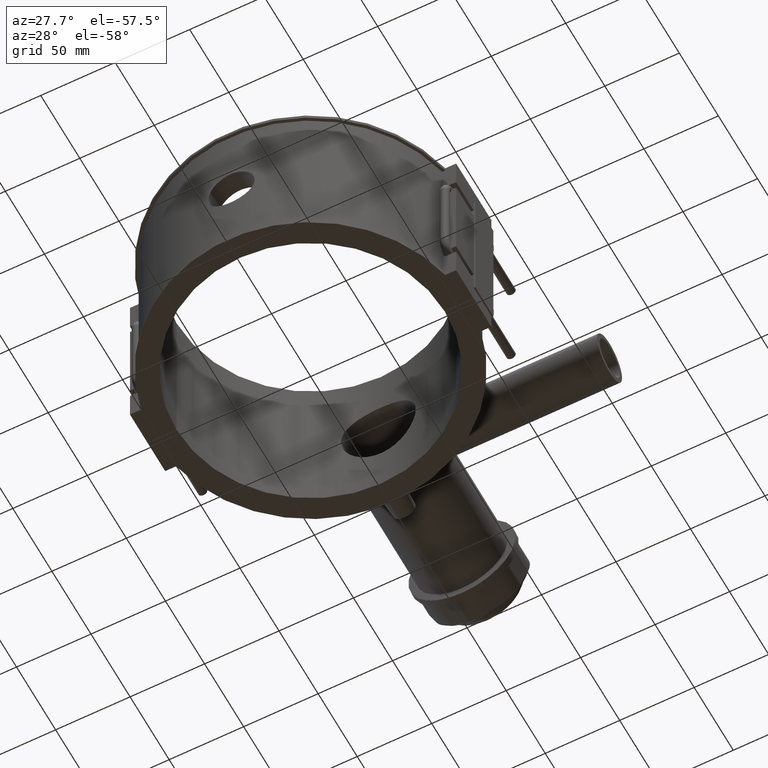
[diagram: clean part render]
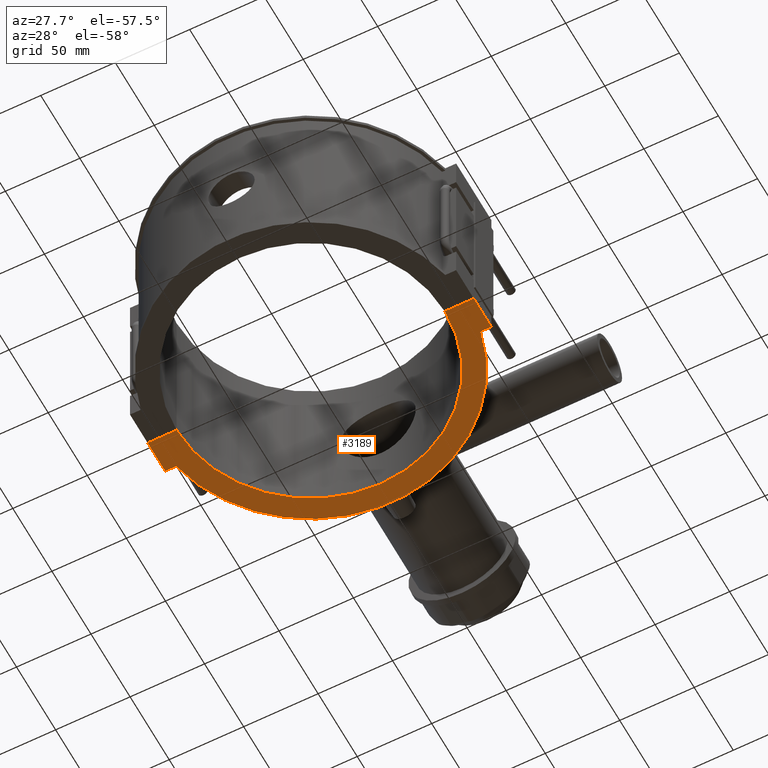
[diagram: same view with one face highlighted and labeled with its STEP entity id]
A machine part, auxiliary view. The second image highlights one B-rep face of the part: STEP entity #3189.
In plain terms, the highlighted planar face has unit normal (0, 0, 1).
Its self-contained STEP definition (entity closure, byte-faithful):
#107=LINE('',#5187,#386);
#170=LINE('',#5569,#449);
#266=LINE('',#6162,#545);
#315=LINE('',#6473,#594);
#317=LINE('',#6476,#596);
#318=LINE('',#6478,#597);
#386=VECTOR('',#3719,7.29534695523888);
#449=VECTOR('',#3846,22.45);
#545=VECTOR('',#4132,19.50001388889);
#594=VECTOR('',#4293,19.5000138888899);
#596=VECTOR('',#4297,7.29534695523888);
#597=VECTOR('',#4300,22.45);
#706=PLANE('',#3470);
#740=CIRCLE('',#3272,104.652);
#811=CIRCLE('',#3469,90.);
#1042=FACE_OUTER_BOUND('',#1274,.T.);
#1274=EDGE_LOOP('',(#2947,#2948,#2949,#2950,#2951,#2952,#2953,#2954));
#1400=VERTEX_POINT('',#5151);
#1401=VERTEX_POINT('',#5152);
#1414=VERTEX_POINT('',#5185);
#1490=VERTEX_POINT('',#5566);
#1491=VERTEX_POINT('',#5568);
#1581=VERTEX_POINT('',#6161);
#1624=VERTEX_POINT('',#6470);
#1625=VERTEX_POINT('',#6472);
#1732=EDGE_CURVE('',#1400,#1401,#740,.T.);
#1749=EDGE_CURVE('',#1400,#1414,#107,.T.);
#1843=EDGE_CURVE('',#1491,#1490,#170,.T.);
#1983=EDGE_CURVE('',#1581,#1491,#266,.T.);
#2059=EDGE_CURVE('',#1625,#1624,#315,.T.);
#2061=EDGE_CURVE('',#1490,#1401,#317,.T.);
#2062=EDGE_CURVE('',#1414,#1625,#318,.T.);
#2064=EDGE_CURVE('',#1624,#1581,#811,.T.);
#2947=ORIENTED_EDGE('',*,*,#2059,.T.);
#2948=ORIENTED_EDGE('',*,*,#2064,.T.);
#2949=ORIENTED_EDGE('',*,*,#1983,.T.);
#2950=ORIENTED_EDGE('',*,*,#1843,.T.);
#2951=ORIENTED_EDGE('',*,*,#2061,.T.);
#2952=ORIENTED_EDGE('',*,*,#1732,.F.);
#2953=ORIENTED_EDGE('',*,*,#1749,.T.);
#2954=ORIENTED_EDGE('',*,*,#2062,.T.);
#3189=ADVANCED_FACE('',(#1042),#706,.F.);
#3272=AXIS2_PLACEMENT_3D('',#5153,#3688,#3689);
#3469=AXIS2_PLACEMENT_3D('',#6481,#4305,#4306);
#3470=AXIS2_PLACEMENT_3D('',#6482,#4307,#4308);
#3688=DIRECTION('center_axis',(0.,0.,1.));
#3689=DIRECTION('ref_axis',(0.976614427290077,0.21499828001376,0.));
#3719=DIRECTION('',(1.,0.,0.));
#3846=DIRECTION('',(0.,1.,0.));
#4132=DIRECTION('',(-1.,1.58422235249023E-19,0.));
#4293=DIRECTION('',(-1.,1.58422235249023E-19,0.));
#4297=DIRECTION('',(1.,0.,0.));
#4300=DIRECTION('',(0.,-1.,0.));
#4305=DIRECTION('center_axis',(0.,0.,1.));
#4306=DIRECTION('ref_axis',(-1.,0.,0.));
#4307=DIRECTION('center_axis',(0.,0.,1.));
#4308=DIRECTION('ref_axis',(1.,0.,0.));
#5151=CARTESIAN_POINT('',(102.204653044761,22.5,-59.));
#5152=CARTESIAN_POINT('',(-102.204653044761,22.5,-59.));
#5153=CARTESIAN_POINT('Origin',(0.,0.,-59.));
#5185=CARTESIAN_POINT('',(109.5,22.5,-59.));
#5187=CARTESIAN_POINT('',(109.5,22.5,-59.));
#5566=CARTESIAN_POINT('',(-109.5,22.5,-59.));
#5568=CARTESIAN_POINT('',(-109.5,0.0499999999999989,-59.));
#5569=CARTESIAN_POINT('',(-109.5,22.5,-59.));
#6161=CARTESIAN_POINT('',(-89.99998611111,0.0499999999999989,-59.));
#6162=CARTESIAN_POINT('',(1.79648330050455,0.0499999999999989,-59.));
#6470=CARTESIAN_POINT('',(89.99998611111,0.0499999999999989,-59.));
#6472=CARTESIAN_POINT('',(109.5,0.0499999999999989,-59.));
#6473=CARTESIAN_POINT('',(1.79648330050455,0.0499999999999989,-59.));
#6476=CARTESIAN_POINT('',(-100.102497471342,22.5,-59.));
#6478=CARTESIAN_POINT('',(109.5,-22.5,-59.));
#6481=CARTESIAN_POINT('Origin',(0.,0.,-59.));
#6482=CARTESIAN_POINT('Origin',(-105.907033398991,1.00372537223288E-16,
-59.));